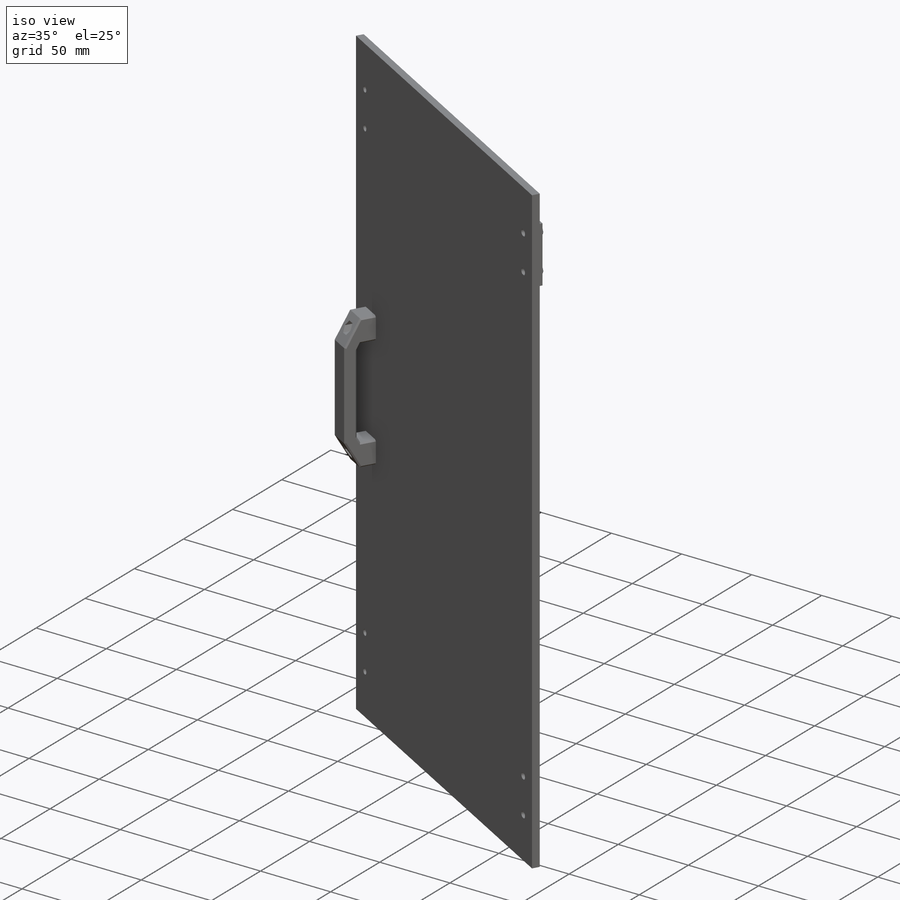
[diagram: iso view]
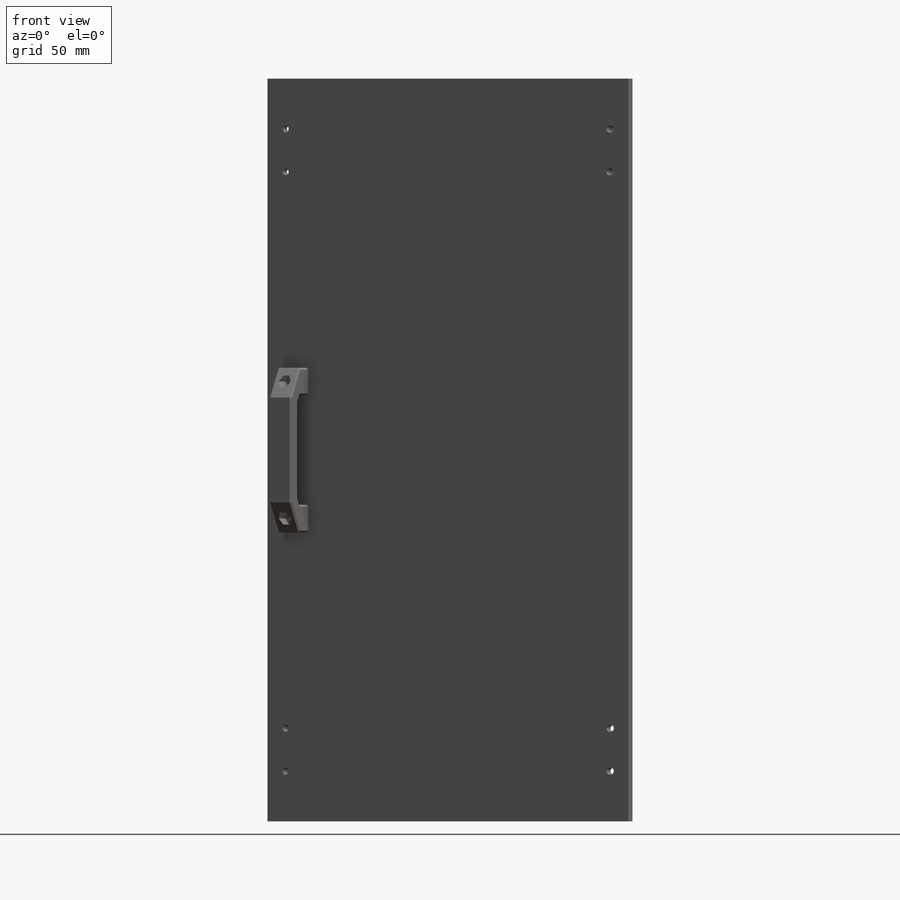
[diagram: front view]
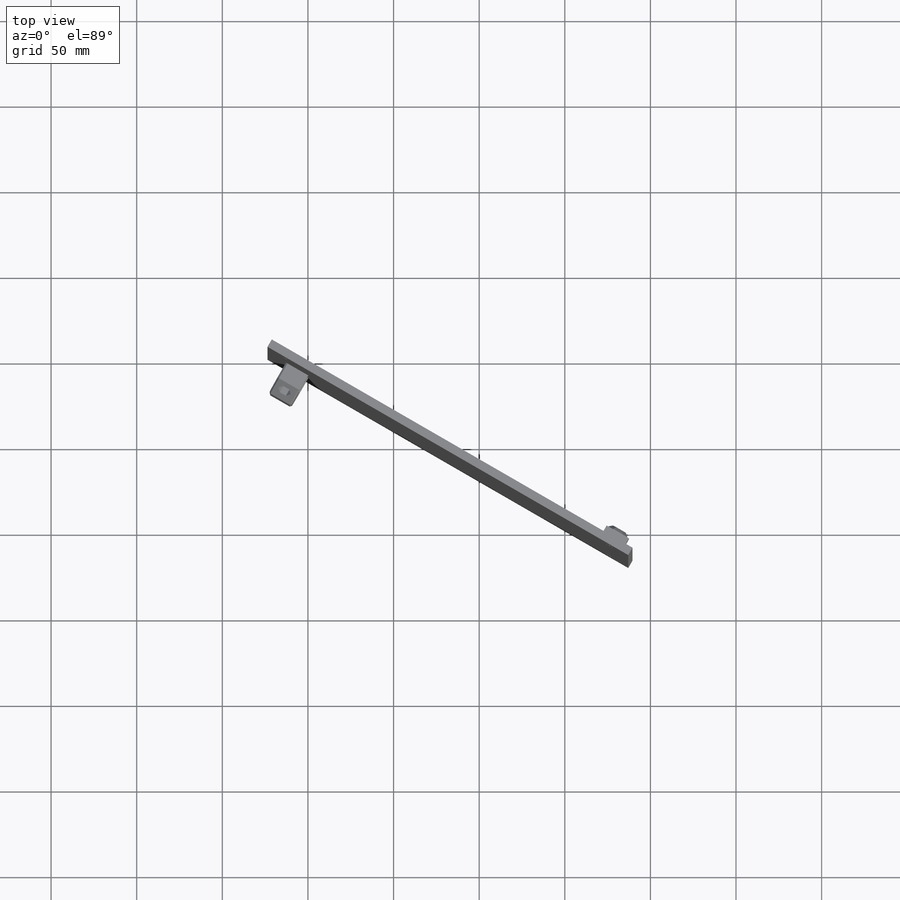
[diagram: top view]
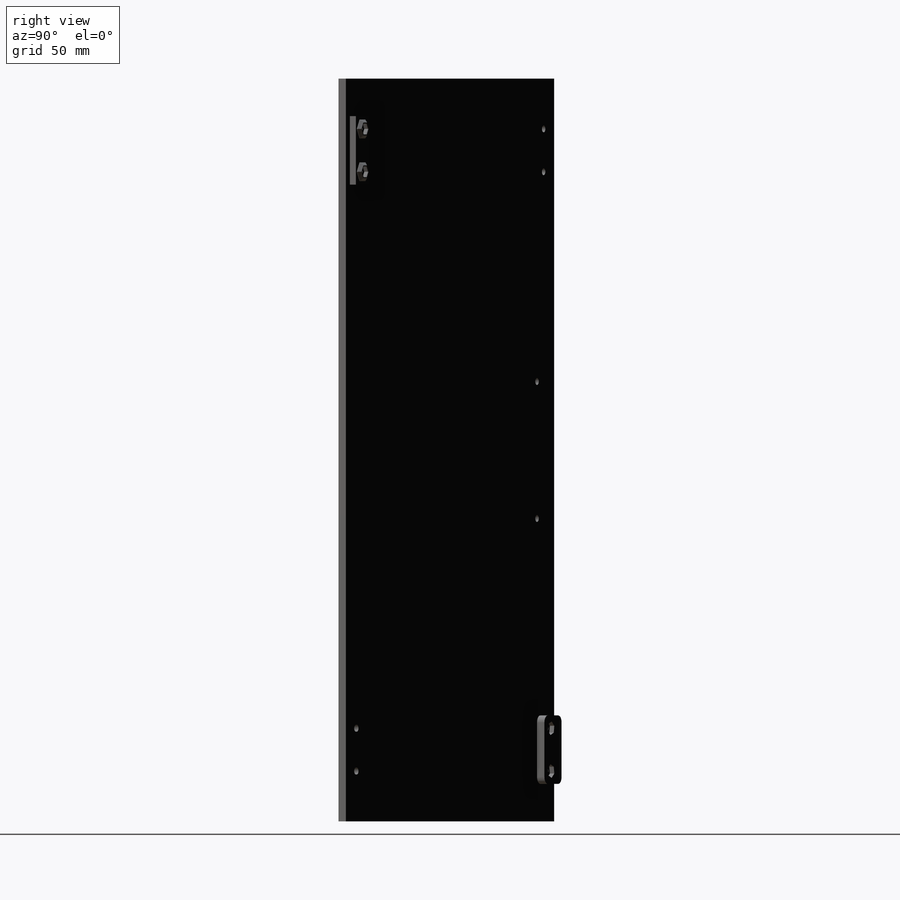
[diagram: right view]
SOLIDWORKS PART (.sldprt)
format: sldprt  version: not decoded by parser v0  size: 847,360 bytes
history: native  units: mm
features: sketch x15, cut_extrude x8, extrude x7, chamfer x6, mirror x2, fillet x2, material x1 (+17 scaffold rows collapsed; 5 parser-record rows omitted)
feature tree (63):
  scaffold x17  (default folders/planes/origin — collapsed)
  material  "Material <not specified>"
  mirror  "Mirror1"
  parser-record x5  (decoder bookkeeping rows leaked as tree rows — omitted from the tree; the rows remain in map.json)
  sketch  "Sketch17"  dims[D1=1.0mm]
  cut_extrude  "Cut-Extrude10"  [1 undecoded]
  sketch  "Sketch1"  dims[c1.D4=4.0mm c1.D1=40.0mm c1.D2=40.0mm c1.D3=25.0mm c2.D1=15.0mm c2.D3=0.0mm c2.D4=0.0mm]
  extrude  "Boss-Extrude1"  Depth=4mm
  sketch  "Sketch3"  dims[D1=7.0mm D2=2.0mm]
  extrude  "Boss-Extrude2"  Depth=2mm
  sketch  "Sketch4"  dims[D1=0.0mm]
  cut_extrude  "Cut-Extrude2"  Depth=1mm
  chamfer  "Chamfer1"  Distance=1.75mm Angle=45deg
  sketch  "Sketch5"  dims[D1=0.5mm]
  extrude  "Boss-Extrude3"  Depth=0.5mm
  chamfer  "Chamfer2"  Distance=0.25mm Angle=45deg
  sketch  "Sketch6"
  cut_extrude  "Cut-Extrude4"  [1 undecoded]
  mirror  "Mirror2"
  sketch  "Sketch7"  dims[D1=4.0mm D2=20.0mm D3=80.0mm]
  cut_extrude  "Cut-Extrude5"  [1 undecoded]
  sketch  "Sketch8"  dims[c1.D1=90.0mm c1.D2=15.0mm c2.D1=8.0mm]
  extrude  "Boss-Extrude4"  Depth=20mm
  sketch  "Sketch9"  dims[c1.D1=60.0mm c1.D2=50.0mm c1.D3=20.0mm c1.D4=~5.44694mm c2.D4=45.0deg c2.D1=24.0mm c2.D2=12.0mm c3.D1=40.0mm c3.D3=8.0mm c3.D5=20.0mm]
  cut_extrude  "Cut-Extrude6"  [1 undecoded]
  sketch  "Sketch16"  dims[D1=7.0mm D2=~3.150214mm]
  cut_extrude  "Cut-Extrude9"  Depth=6mm
  chamfer  "Chamfer3"  Distance=10mm Angle=60deg
  chamfer  "Chamfer4"  Distance=4mm Angle=30deg
  chamfer  "Chamfer5"  Distance=1mm Angle=45deg
  sketch  "Sketch11"  dims[D1=3.6mm]
  cut_extrude  "Cut-Extrude7"  Depth=10mm
  sketch  "Sketch12"  dims[D1=15.0mm D2=3.0mm]
  extrude  "Boss-Extrude5"  Depth=3mm
  chamfer  "Chamfer6"  Distance=1.5mm Angle=45deg
  sketch  "Sketch13"  dims[D2=40.0mm D3=20.0mm D1=0.1mm]
  extrude  "Boss-Extrude6"  Depth=5mm
  fillet  "Fillet1"  Radius=1mm
  sketch  "Sketch14"
  extrude  "Boss-Extrude7"  Depth=0.1mm
  sketch  "Sketch15"  dims[D1=7.0mm]
  cut_extrude  "Cut-Extrude8"  Depth=3mm
  fillet  "Fillet2"  Radius=4mm
decode coverage: 32 of 40 modeling features carry decoded parameters
note: ~ marks probable driven/reference dimensions
note: 4 parameter values undecoded
summary: no parameter record found for 4 features
note: suppression state not decoded; provenance and decode notes live in map.json
